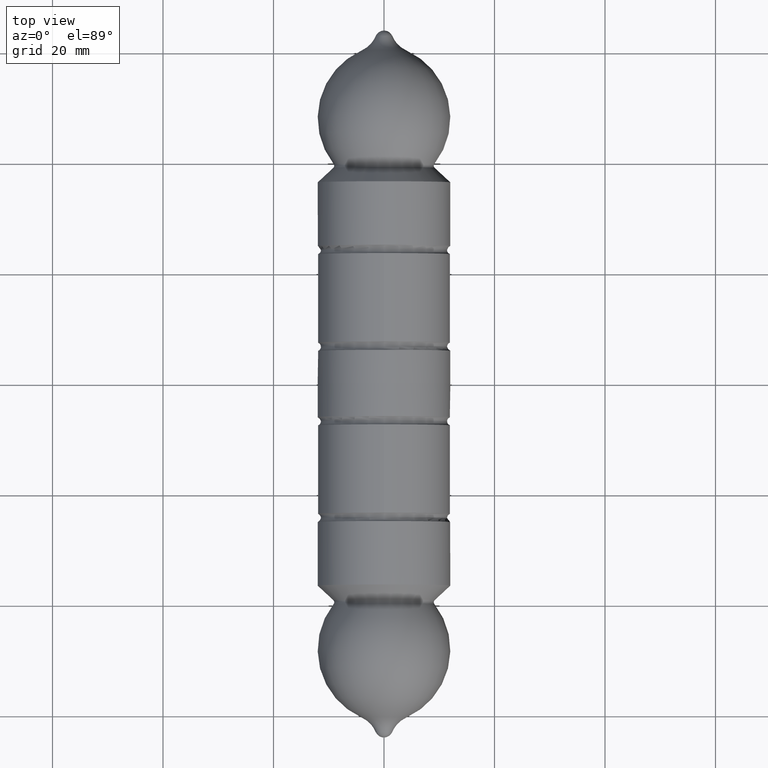
[diagram: clean part render]
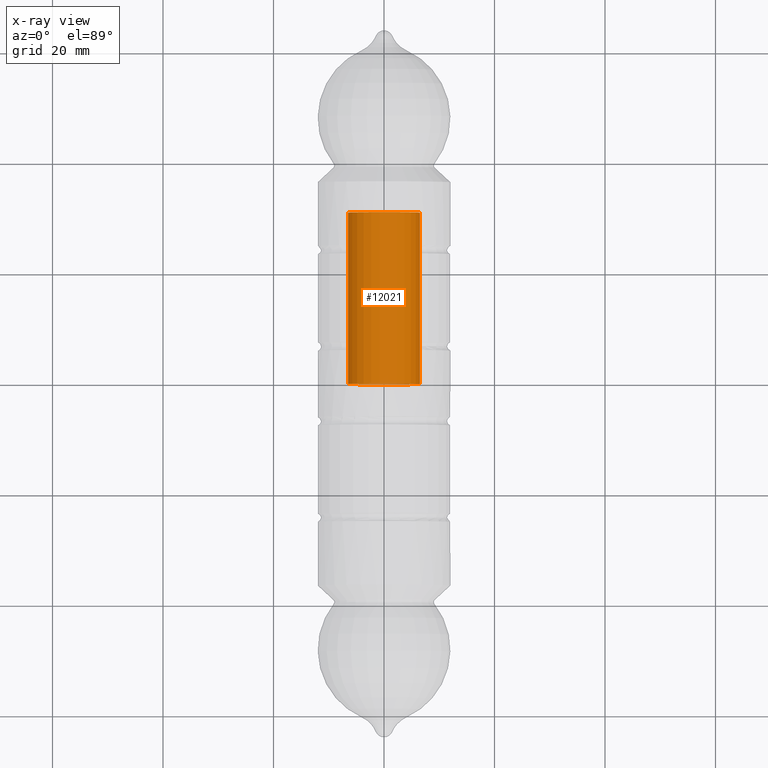
[diagram: x-ray — body ghosted, one internal face saturated and labeled with its STEP entity id]
A machine part, top view, then the same camera in x-ray: the body is ghosted and one INTERNAL B-rep face — a face not visible from any outside direction — is saturated and labeled: STEP entity #12021.
In plain terms, the highlighted cylindrical surface (bore or boss wall) has radius 6.5 mm, axis along (-0, 1, 0).
Its self-contained STEP definition (entity closure, byte-faithful):
#181 = CARTESIAN_POINT ( 'NONE',  ( 6.500000000000001776, 30.99999999999999645, 0.000000000000000000 ) ) ;
#200 = CYLINDRICAL_SURFACE ( 'NONE', #5799, 6.500000000000002665 ) ;
#1175 = AXIS2_PLACEMENT_3D ( 'NONE', #8223, #9268, #5521 ) ;
#1694 = EDGE_LOOP ( 'NONE', ( #11911 ) ) ;
#1929 = EDGE_CURVE ( 'NONE', #8852, #8852, #8431, .T. ) ;
#2777 = DIRECTION ( 'NONE',  ( -2.348637696994923334E-17, 1.000000000000000000, -0.000000000000000000 ) ) ;
#4298 = CARTESIAN_POINT ( 'NONE',  ( 3.585464370634653197E-33, -1.526614503046700968E-16, 0.000000000000000000 ) ) ;
#4601 = FACE_OUTER_BOUND ( 'NONE', #1694, .T. ) ;
#5521 = DIRECTION ( 'NONE',  ( 1.000000000000000000, 0.000000000000000000, 0.000000000000000000 ) ) ;
#5799 = AXIS2_PLACEMENT_3D ( 'NONE', #8315, #2777, #7452 ) ;
#6377 = DIRECTION ( 'NONE',  ( -1.000000000000000000, -2.348637696994923334E-17, 0.000000000000000000 ) ) ;
#7452 = DIRECTION ( 'NONE',  ( -1.000000000000000000, -2.348637696994923334E-17, 0.000000000000000000 ) ) ;
#7885 = EDGE_LOOP ( 'NONE', ( #7908 ) ) ;
#7908 = ORIENTED_EDGE ( 'NONE', *, *, #1929, .T. ) ;
#7910 = EDGE_CURVE ( 'NONE', #11085, #11085, #8170, .T. ) ;
#8170 = CIRCLE ( 'NONE', #10665, 6.500000000000003553 ) ;
#8223 = CARTESIAN_POINT ( 'NONE',  ( -7.280776860684261227E-16, 30.99999999999999645, 0.000000000000000000 ) ) ;
#8315 = CARTESIAN_POINT ( 'NONE',  ( 0.000000000000000000, 0.000000000000000000, 0.000000000000000000 ) ) ;
#8431 = CIRCLE ( 'NONE', #1175, 6.500000000000002665 ) ;
#8715 = CARTESIAN_POINT ( 'NONE',  ( -6.500000000000003553, -3.053229006093401937E-16, 0.000000000000000000 ) ) ;
#8852 = VERTEX_POINT ( 'NONE', #181 ) ;
#9268 = DIRECTION ( 'NONE',  ( 2.348637696994920253E-17, -1.000000000000000000, 0.000000000000000000 ) ) ;
#10069 = FACE_OUTER_BOUND ( 'NONE', #7885, .T. ) ;
#10126 = DIRECTION ( 'NONE',  ( -2.348637696994923334E-17, 1.000000000000000000, -0.000000000000000000 ) ) ;
#10665 = AXIS2_PLACEMENT_3D ( 'NONE', #4298, #10126, #6377 ) ;
#11085 = VERTEX_POINT ( 'NONE', #8715 ) ;
#11911 = ORIENTED_EDGE ( 'NONE', *, *, #7910, .T. ) ;
#12021 = ADVANCED_FACE ( 'NONE', ( #10069, #4601 ), #200, .T. ) ;